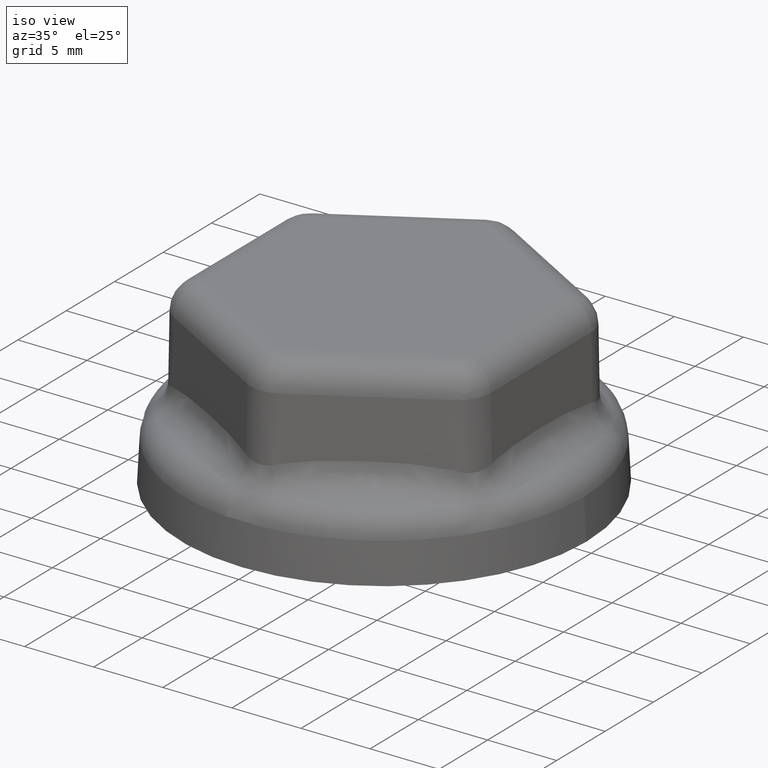
[diagram: clean part render]
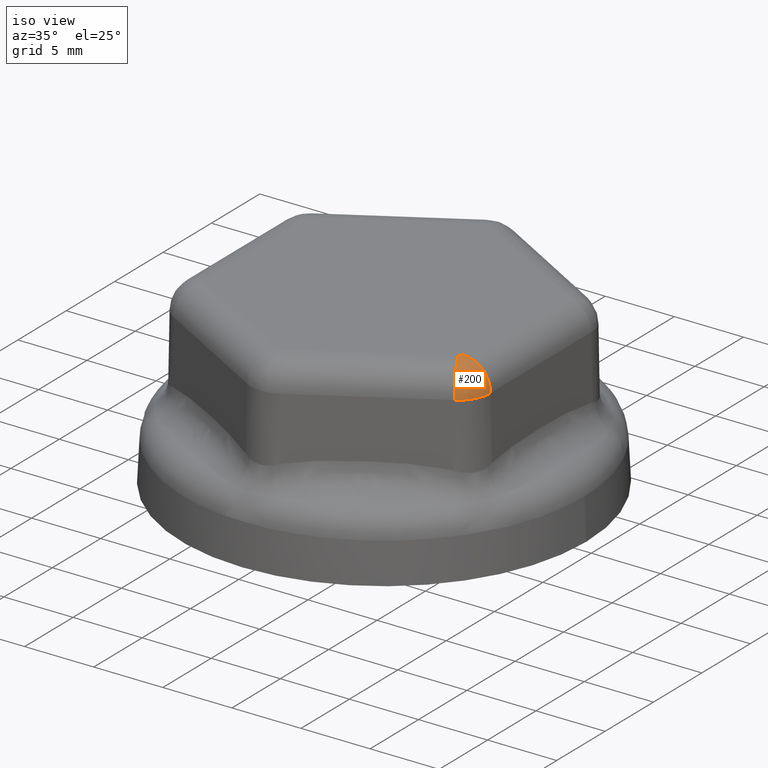
[diagram: same view with one face highlighted and labeled with its STEP entity id]
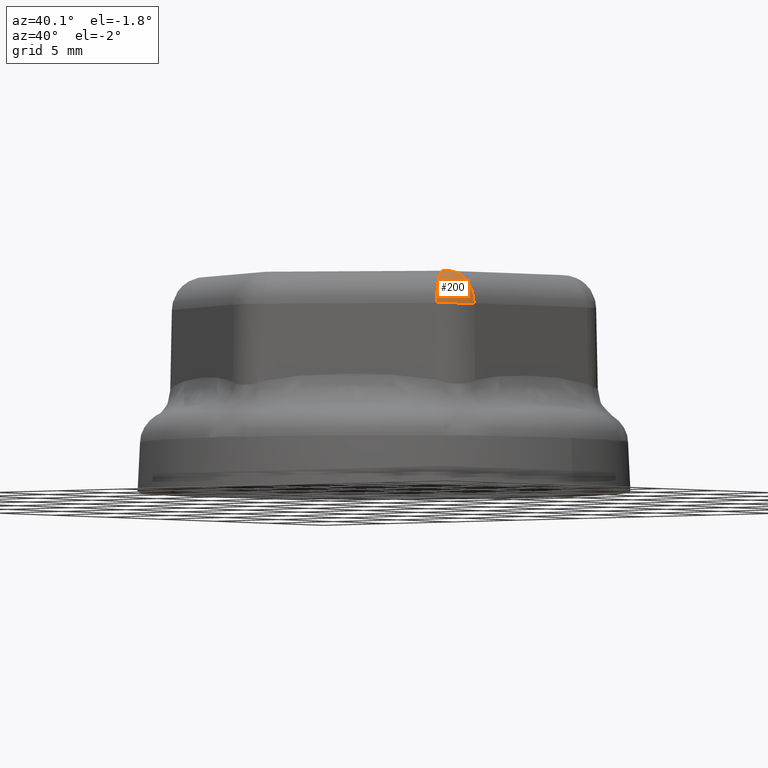
[diagram: same view with one face highlighted and labeled with its STEP entity id]
A machine part, iso view. The second image highlights one B-rep face of the part: STEP entity #200.
A second angle (auxiliary view) of the same face is appended — the face is thin or edge-on in the first view.
In plain terms, the highlighted face is a freeform B-spline surface patch.
Its self-contained STEP definition (entity closure, byte-faithful):
#200 = ADVANCED_FACE( '', ( #460 ), #461, .T. );
#460 = FACE_OUTER_BOUND( '', #5009, .T. );
#461 = ( B_SPLINE_SURFACE( 3, 2, ( ( #5011, #5012, #5013 ), ( #5014, #5015, #5016 ), ( #5017, #5018, #5019 ), ( #5020, #5021, #5022 ), ( #5023, #5024, #5025 ), ( #5026, #5027, #5028 ), ( #5029, #5030, #5031 ), ( #5032, #5033, #5034 ), ( #5035, #5036, #5037 ), ( #5038, #5039, #5040 ), ( #5041, #5042, #5043 ), ( #5044, #5045, #5046 ), ( #5047, #5048, #5049 ), ( #5050, #5051, #5052 ), ( #5053, #5054, #5055 ), ( #5056, #5057, #5058 ), ( #5059, #5060, #5061 ), ( #5062, #5063, #5064 ), ( #5065, #5066, #5067 ), ( #5068, #5069, #5070 ), ( #5071, #5072, #5073 ), ( #5074, #5075, #5076 ), ( #5077, #5078, #5079 ), ( #5080, #5081, #5082 ), ( #5083, #5084, #5085 ), ( #5086, #5087, #5088 ), ( #5089, #5090, #5091 ), ( #5092, #5093, #5094 ), ( #5095, #5096, #5097 ), ( #5098, #5099, #5100 ), ( #5101, #5102, #5103 ), ( #5104, #5105, #5106 ), ( #5107, #5108, #5109 ), ( #5110, #5111, #5112 ), ( #5113, #5114, #5115 ), ( #5116, #5117, #5118 ) ), .UNSPECIFIED., .F., .F., .F. )B_SPLINE_SURFACE_WITH_KNOTS( ( 4, 2, 2, 2, 2, 2, 2, 2, 2, 2, 2, 2, 2, 2, 2, 2, 2, 4 ), ( 3, 3 ), ( 0.000000000000000, 2.33139516953268E-005, 4.66279033906536E-005, 6.99418550859804E-005, 9.32558067813072E-005, 0.000116569758476634, 0.000139883710171961, 0.000163197661867288, 0.000186511613562614, 0.000209825565257941, 0.000233139516953268, 0.000256453468648595, 0.000279767420343922, 0.000303081372039248, 0.000326395323734575, 0.000338052299582239, 0.000349709275429902, 0.000373023227125229 ), ( 0.000000000000000, 1.00000000000000 ), .UNSPECIFIED. )RATIONAL_B_SPLINE_SURFACE( ( ( 1.00000000000000, 0.713250449154182, 1.00000000000000 ), ( 1.00000000000000, 0.713250448841956, 1.00000000000000 ), ( 1.00000000000000, 0.713250266793792, 1.00000000000000 ), ( 1.00000000000000, 0.713249695211527, 1.00000000000000 ), ( 1.00000000000000, 0.713249306370470, 1.00000000000000 ), ( 1.00000000000000, 0.713248445815099, 1.00000000000000 ), ( 1.00000000000000, 0.713247973672515, 1.00000000000000 ), ( 1.00000000000000, 0.713247030825169, 1.00000000000000 ), ( 1.00000000000000, 0.713246559636566, 1.00000000000000 ), ( 1.00000000000000, 0.713245674456492, 1.00000000000000 ), ( 1.00000000000000, 0.713245260077269, 1.00000000000000 ), ( 1.00000000000000, 0.713244525772709, 1.00000000000000 ), ( 1.00000000000000, 0.713244208936481, 1.00000000000000 ), ( 1.00000000000000, 0.713243695626517, 1.00000000000000 ), ( 1.00000000000000, 0.713243498844532, 1.00000000000000 ), ( 1.00000000000000, 0.713243234733009, 1.00000000000000 ), ( 1.00000000000000, 0.713243167333658, 1.00000000000000 ), ( 1.00000000000000, 0.713243165282810, 1.00000000000000 ), ( 1.00000000000000, 0.713243230631889, 1.00000000000000 ), ( 1.00000000000000, 0.713243492068580, 1.00000000000000 ), ( 1.00000000000000, 0.713243688307004, 1.00000000000000 ), ( 1.00000000000000, 0.713244202937849, 1.00000000000000 ), ( 1.00000000000000, 0.713244519272273, 1.00000000000000 ), ( 1.00000000000000, 0.713245246167227, 1.00000000000000 ), ( 1.00000000000000, 0.713245656996324, 1.00000000000000 ), ( 1.00000000000000, 0.713246537392250, 1.00000000000000 ), ( 1.00000000000000, 0.713247007340260, 1.00000000000000 ), ( 1.00000000000000, 0.713247951094424, 1.00000000000000 ), ( 1.00000000000000, 0.713248425435285, 1.00000000000000 ), ( 1.00000000000000, 0.713249076198857, 1.00000000000000 ), ( 1.00000000000000, 0.713249282790987, 1.00000000000000 ), ( 1.00000000000000, 0.713249660600609, 1.00000000000000 ), ( 1.00000000000000, 0.713249831999367, 1.00000000000000 ), ( 1.00000000000000, 0.713250266640732, 1.00000000000000 ), ( 1.00000000000000, 0.713250449014916, 1.00000000000000 ), ( 1.00000000000000, 0.713250449154182, 1.00000000000000 ) ) )BOUNDED_SURFACE(  )REPRESENTATION_ITEM( '' )GEOMETRIC_REPRESENTATION_ITEM(  )SURFACE(  ) );
#5009 = EDGE_LOOP( '', ( #5859, #5860, #5861, #5862 ) );
#5011 = CARTESIAN_POINT( '', ( 9.36005482448643, -5.19619637440034, 12.8000000000000 ) );
#5012 = CARTESIAN_POINT( '', ( 11.3254493507178, -5.19619638907192, 12.8000000000000 ) );
#5013 = CARTESIAN_POINT( '', ( 11.3597502147992, -5.19619638932797, 10.8349048128746 ) );
#5014 = CARTESIAN_POINT( '', ( 9.36005478637126, -5.20409815425190, 12.8000000000000 ) );
#5015 = CARTESIAN_POINT( '', ( 11.3254487692520, -5.25724049312538, 12.8000000000001 ) );
#5016 = CARTESIAN_POINT( '', ( 11.3597502141663, -5.25816794429314, 10.8349048226312 ) );
#5017 = CARTESIAN_POINT( '', ( 9.35973493251974, -5.21194113606678, 12.8000000000000 ) );
#5018 = CARTESIAN_POINT( '', ( 11.3229801130982, -5.31628214608561, 12.8000000000000 ) );
#5019 = CARTESIAN_POINT( '', ( 11.3572427068909, -5.31810315455421, 10.8349037769744 ) );
#5020 = CARTESIAN_POINT( '', ( 9.35851381291991, -5.22752004595823, 12.8000000000000 ) );
#5021 = CARTESIAN_POINT( '', ( 11.3140425216243, -5.43035173392033, 12.8000000000000 ) );
#5022 = CARTESIAN_POINT( '', ( 11.3481667284250, -5.43389121795219, 10.8349005062279 ) );
#5023 = CARTESIAN_POINT( '', ( 9.35761254814214, -5.23525600283670, 12.8000000000000 ) );
#5024 = CARTESIAN_POINT( '', ( 11.3075767698228, -5.48538370123528, 12.8000000000000 ) );
#5025 = CARTESIAN_POINT( '', ( 11.3416021774949, -5.48974830323260, 10.8348982957811 ) );
#5026 = CARTESIAN_POINT( '', ( 9.35527307436509, -5.25062910343187, 12.8000000000000 ) );
#5027 = CARTESIAN_POINT( '', ( 11.2913741772049, -5.59188757218135, 12.8000000000000 ) );
#5028 = CARTESIAN_POINT( '', ( 11.3251525205822, -5.59784142782764, 10.8348933781998 ) );
#5029 = CARTESIAN_POINT( '', ( 9.35383475482369, -5.25826622680535, 12.8000000000000 ) );
#5030 = CARTESIAN_POINT( '', ( 11.2816354439395, -5.64336679720294, 12.8000000000000 ) );
#5031 = CARTESIAN_POINT( '', ( 11.3152667225736, -5.65008509851981, 10.8348906903893 ) );
#5032 = CARTESIAN_POINT( '', ( 9.35045159518731, -5.27344725921942, 12.8000000000000 ) );
#5033 = CARTESIAN_POINT( '', ( 11.2593534461539, -5.74337656301098, 12.8000000000000 ) );
#5034 = CARTESIAN_POINT( '', ( 11.2926496025178, -5.75157340190323, 10.8348853053244 ) );
#5035 = CARTESIAN_POINT( '', ( 9.34850666156579, -5.28099115104826, 12.8000000000000 ) );
#5036 = CARTESIAN_POINT( '', ( 11.2468079481259, -5.79190891282554, 12.8000000000000 ) );
#5037 = CARTESIAN_POINT( '', ( 11.2799168877973, -5.80082006540006, 10.8348826210369 ) );
#5038 = CARTESIAN_POINT( '', ( 9.34412835687212, -5.29598904818335, 12.8000000000000 ) );
#5039 = CARTESIAN_POINT( '', ( 11.2191655964194, -5.88661610998128, 12.8000000000000 ) );
#5040 = CARTESIAN_POINT( '', ( 11.2518638578541, -5.89691595086275, 10.8348775668187 ) );
#5041 = CARTESIAN_POINT( '', ( 9.34169473271440, -5.30344359654992, 12.8000000000000 ) );
#5042 = CARTESIAN_POINT( '', ( 11.2040660779729, -5.93279387307727, 12.8000000000000 ) );
#5043 = CARTESIAN_POINT( '', ( 11.2365414141075, -5.94376829403303, 10.8348752052037 ) );
#5044 = CARTESIAN_POINT( '', ( 9.33634683962469, -5.31826188229514, 12.8000000000000 ) );
#5045 = CARTESIAN_POINT( '', ( 11.1714041263464, -6.02330813641380, 12.8000000000000 ) );
#5046 = CARTESIAN_POINT( '', ( 11.2033992063115, -6.03560099337888, 10.8348710130649 ) );
#5047 = CARTESIAN_POINT( '', ( 9.33345576948408, -5.32556104728985, 12.8000000000000 ) );
#5048 = CARTESIAN_POINT( '', ( 11.1539827568090, -6.06725097686045, 12.8000000000000 ) );
#5049 = CARTESIAN_POINT( '', ( 11.1857229701958, -6.08018209797645, 10.8348692074466 ) );
#5050 = CARTESIAN_POINT( '', ( 9.32726656109497, -5.33993320195482, 12.8000000000000 ) );
#5051 = CARTESIAN_POINT( '', ( 11.1170626922928, -6.15299165323393, 12.8000000000000 ) );
#5052 = CARTESIAN_POINT( '', ( 11.1482643861780, -6.16716581472182, 10.8348662762825 ) );
#5053 = CARTESIAN_POINT( '', ( 9.32396729995988, -5.34700903943513, 12.8000000000000 ) );
#5054 = CARTESIAN_POINT( '', ( 11.0975569515185, -6.19480503728648, 12.8000000000000 ) );
#5055 = CARTESIAN_POINT( '', ( 11.1284752094765, -6.20958433222920, 10.8348651550772 ) );
#5056 = CARTESIAN_POINT( '', ( 9.31697044305279, -5.36094614873613, 12.8000000000000 ) );
#5057 = CARTESIAN_POINT( '', ( 11.0563977544017, -6.27679382318050, 12.8000000000000 ) );
#5058 = CARTESIAN_POINT( '', ( 11.0867191126287, -6.29275871840792, 10.8348636470682 ) );
#5059 = CARTESIAN_POINT( '', ( 9.31327281216555, -5.36780740164165, 12.8000000000000 ) );
#5060 = CARTESIAN_POINT( '', ( 11.0347444256244, -6.31696753287917, 12.8000000000000 ) );
#5061 = CARTESIAN_POINT( '', ( 11.0647524809907, -6.33351294062179, 10.8348632629243 ) );
#5062 = CARTESIAN_POINT( '', ( 9.30548138937593, -5.38131651262910, 12.8000000000000 ) );
#5063 = CARTESIAN_POINT( '', ( 10.9891239106538, -6.39606640861188, 12.8000000000000 ) );
#5064 = CARTESIAN_POINT( '', ( 11.0184725401253, -6.41375515101022, 10.8348632513589 ) );
#5065 = CARTESIAN_POINT( '', ( 9.30138760812301, -5.38796437644742, 12.8000000000000 ) );
#5066 = CARTESIAN_POINT( '', ( 10.9651575927329, -6.43499028915861, 12.8000000000000 ) );
#5067 = CARTESIAN_POINT( '', ( 10.9941600954429, -6.45324181591287, 10.8348636235252 ) );
#5068 = CARTESIAN_POINT( '', ( 9.29279765336294, -5.40104335276119, 12.8000000000000 ) );
#5069 = CARTESIAN_POINT( '', ( 10.9146305020992, -6.51191958928115, 12.8000000000000 ) );
#5070 = CARTESIAN_POINT( '', ( 10.9429032358835, -6.53128501204812, 10.8348651165563 ) );
#5071 = CARTESIAN_POINT( '', ( 9.28830014254334, -5.40747636133681, 12.8000000000000 ) );
#5072 = CARTESIAN_POINT( '', ( 10.8880630584258, -6.54993523452750, 12.8000000000000 ) );
#5073 = CARTESIAN_POINT( '', ( 10.9159518986298, -6.56985180752240, 10.8348662349353 ) );
#5074 = CARTESIAN_POINT( '', ( 9.27889302682323, -5.42010988308932, 12.8000000000000 ) );
#5075 = CARTESIAN_POINT( '', ( 10.8319500601176, -6.62528865298856, 12.8000000000000 ) );
#5076 = CARTESIAN_POINT( '', ( 10.8590270160824, -6.64630044705820, 10.8348691728011 ) );
#5077 = CARTESIAN_POINT( '', ( 9.27402231153977, -5.42625826712764, 12.8000000000000 ) );
#5078 = CARTESIAN_POINT( '', ( 10.8026364018172, -6.66231605730409, 12.8000000000000 ) );
#5079 = CARTESIAN_POINT( '', ( 10.8292885122130, -6.68386725513837, 10.8348709759523 ) );
#5080 = CARTESIAN_POINT( '', ( 9.26394787237300, -5.43821233033267, 12.8000000000000 ) );
#5081 = CARTESIAN_POINT( '', ( 10.7411129296920, -6.73531170178136, 12.8000000000000 ) );
#5082 = CARTESIAN_POINT( '', ( 10.7668711639058, -6.75792996326923, 10.8348751258550 ) );
#5083 = CARTESIAN_POINT( '', ( 9.25874366201073, -5.44401872672849, 12.8000000000000 ) );
#5084 = CARTESIAN_POINT( '', ( 10.7089016225714, -6.77128402258426, 12.8000000000000 ) );
#5085 = CARTESIAN_POINT( '', ( 10.7341904989966, -6.79442973659535, 10.8348774669897 ) );
#5086 = CARTESIAN_POINT( '', ( 9.24799202166966, -5.45528080943548, 12.8000000000000 ) );
#5087 = CARTESIAN_POINT( '', ( 10.6410440082380, -6.84235587144154, 12.8000000000000 ) );
#5088 = CARTESIAN_POINT( '', ( 10.6653406857849, -6.86654822701239, 10.8348824943134 ) );
#5089 = CARTESIAN_POINT( '', ( 9.24244465408072, -5.46073655949808, 12.8000000000000 ) );
#5090 = CARTESIAN_POINT( '', ( 10.6053992160096, -6.87745655532062, 12.8000000000000 ) );
#5091 = CARTESIAN_POINT( '', ( 10.6291726023978, -6.90216765775303, 10.8348851710808 ) );
#5092 = CARTESIAN_POINT( '', ( 9.23098930781783, -5.47127957851662, 12.8000000000000 ) );
#5093 = CARTESIAN_POINT( '', ( 10.5299879424781, -6.94685446344087, 12.8000000000000 ) );
#5094 = CARTESIAN_POINT( '', ( 10.5526494898854, -6.97259635976014, 10.8348905617983 ) );
#5095 = CARTESIAN_POINT( '', ( 9.22508142751635, -5.47636694799183, 12.8000000000000 ) );
#5096 = CARTESIAN_POINT( '', ( 10.4902215255766, -6.98115478530161, 12.8000000000000 ) );
#5097 = CARTESIAN_POINT( '', ( 10.5122938638736, -7.00740805415690, 10.8348932616046 ) );
#5098 = CARTESIAN_POINT( '', ( 9.21592886411837, -5.48370091404823, 12.8000000000000 ) );
#5099 = CARTESIAN_POINT( '', ( 10.4268553397801, -7.03192531048747, 12.8000000000000 ) );
#5100 = CARTESIAN_POINT( '', ( 10.4479842593017, -7.05893956654163, 10.8348969807631 ) );
#5101 = CARTESIAN_POINT( '', ( 9.21282949356537, -5.48609599449219, 12.8000000000000 ) );
#5102 = CARTESIAN_POINT( '', ( 10.4051133548473, -7.04873403127945, 12.8000000000000 ) );
#5103 = CARTESIAN_POINT( '', ( 10.4259175429889, -7.07600051392435, 10.8348981553475 ) );
#5104 = CARTESIAN_POINT( '', ( 9.20652920725825, -5.49078239404367, 12.8000000000000 ) );
#5105 = CARTESIAN_POINT( '', ( 10.3602776805432, -7.08208174776497, 12.8000000000000 ) );
#5106 = CARTESIAN_POINT( '', ( 10.3804108598658, -7.10985026698768, 10.8349003156472 ) );
#5107 = CARTESIAN_POINT( '', ( 9.20332685669577, -5.49307475394283, 12.8000000000000 ) );
#5108 = CARTESIAN_POINT( '', ( 10.3371736149975, -7.09862869025784, 12.8000000000000 ) );
#5109 = CARTESIAN_POINT( '', ( 10.3569599167154, -7.12664654305077, 10.8349012893917 ) );
#5110 = CARTESIAN_POINT( '', ( 9.19356888977857, -5.49978187418109, 12.8000000000000 ) );
#5111 = CARTESIAN_POINT( '', ( 10.2657431682591, -7.14772304619984, 12.8000000000000 ) );
#5112 = CARTESIAN_POINT( '', ( 10.2844547948948, -7.17648289236134, 10.8349037754454 ) );
#5113 = CARTESIAN_POINT( '', ( 9.18690258252144, -5.50399963725451, 12.8000000000000 ) );
#5114 = CARTESIAN_POINT( '', ( 10.2155818848413, -7.17953295711436, 12.7999999999999 ) );
#5115 = CARTESIAN_POINT( '', ( 10.2335350503344, -7.20877547200080, 10.8349048208758 ) );
#5116 = CARTESIAN_POINT( '', ( 9.18006547594090, -5.50794707138094, 12.8000000000000 ) );
#5117 = CARTESIAN_POINT( '', ( 10.1627627544919, -7.21002865064461, 12.8000000000000 ) );
#5118 = CARTESIAN_POINT( '', ( 10.1799131868020, -7.23973407015534, 10.8349048128746 ) );
#5859 = ORIENTED_EDGE( '', *, *, #6199, .T. );
#5860 = ORIENTED_EDGE( '', *, *, #6023, .F. );
#5861 = ORIENTED_EDGE( '', *, *, #6198, .F. );
#5862 = ORIENTED_EDGE( '', *, *, #6083, .F. );
#6023 = EDGE_CURVE( '', #6416, #6418, #6419, .T. );
#6083 = EDGE_CURVE( '', #6483, #6520, #6521, .T. );
#6198 = EDGE_CURVE( '', #6520, #6416, #6688, .T. );
#6199 = EDGE_CURVE( '', #6483, #6418, #6689, .T. );
#6416 = VERTEX_POINT( '', #7479 );
#6418 = VERTEX_POINT( '', #7482 );
#6419 = B_SPLINE_CURVE_WITH_KNOTS( '', 3, ( #7483, #7484, #7485, #7486, #7487, #7488, #7489, #7490, #7491, #7492, #7493, #7494, #7495, #7496, #7497, #7498, #7499, #7500, #7501, #7502, #7503, #7504 ), .UNSPECIFIED., .F., .F., ( 4, 2, 2, 2, 2, 2, 2, 2, 2, 2, 4 ), ( 0.000000000000000, 2.36650013815580E-005, 4.73300027631161E-005, 9.46600055262280E-005, 0.000141990008289340, 0.000189320011052452, 0.000236650013815564, 0.000260315015197119, 0.000283980016578674, 0.000331310019341782, 0.000378640022104891 ), .UNSPECIFIED. );
#6483 = VERTEX_POINT( '', #7793 );
#6520 = VERTEX_POINT( '', #8055 );
#6521 = B_SPLINE_CURVE_WITH_KNOTS( '', 3, ( #8056, #8057, #8058, #8059, #8060, #8061, #8062, #8063, #8064, #8065, #8066, #8067, #8068, #8069, #8070, #8071, #8072, #8073, #8074, #8075, #8076, #8077, #8078, #8079, #8080, #8081, #8082, #8083, #8084, #8085, #8086, #8087, #8088, #8089, #8090, #8091, #8092, #8093, #8094, #8095, #8096 ), .UNSPECIFIED., .F., .F., ( 4, 2, 1, 1, 1, 1, 1, 1, 1, 1, 1, 2, 2, 2, 1, 1, 1, 2, 1, 2, 2, 1, 1, 1, 2, 1, 2, 2, 4 ), ( -5.99999999839724E-008, 2.33505648531633E-006, 4.73011297061664E-006, 9.52022594121725E-006, 1.91004518824210E-005, 3.82609037648286E-005, 7.65818075296437E-005, 0.000153223615059271, 0.000306507230118524, 0.000459790845177776, 0.000613074460237029, 0.000766358075296281, 0.000804678979061094, 0.000842999882825907, 0.000919641690355530, 0.00107292530541478, 0.00122620892047402, 0.00137949253553326, 0.00145613434306289, 0.00149445524682770, 0.00153277615059251, 0.00168605976565177, 0.00183934338071102, 0.00199262699577028, 0.00214591061082954, 0.00222255241835917, 0.00226087332212398, 0.00229919422588879, 0.00245247784094805 ), .UNSPECIFIED. );
#6688 = CIRCLE( '', #8853, 2.00000000000000 );
#6689 = CIRCLE( '', #8854, 2.00000000000000 );
#7479 = CARTESIAN_POINT( '', ( 9.18006547466193, -5.50794707211936, 12.8000000000000 ) );
#7482 = CARTESIAN_POINT( '', ( 9.36005482448643, -5.19619638932787, 12.8000000000000 ) );
#7483 = CARTESIAN_POINT( '', ( 9.18006547466193, -5.50794707211936, 12.8000000000000 ) );
#7484 = CARTESIAN_POINT( '', ( 9.18690267691540, -5.50399961147514, 12.8000000000000 ) );
#7485 = CARTESIAN_POINT( '', ( 9.19356879688254, -5.49978195079973, 12.8000000000000 ) );
#7486 = CARTESIAN_POINT( '', ( 9.20657960364351, -5.49083897166916, 12.8000000000000 ) );
#7487 = CARTESIAN_POINT( '', ( 9.21287801826546, -5.48614558046079, 12.8000000000000 ) );
#7488 = CARTESIAN_POINT( '', ( 9.23118311476189, -5.47147761874074, 12.8000000000000 ) );
#7489 = CARTESIAN_POINT( '', ( 9.24261620724572, -5.46091186117628, 12.8000000000000 ) );
#7490 = CARTESIAN_POINT( '', ( 9.26411947119843, -5.43838768047253, 12.8000000000000 ) );
#7491 = CARTESIAN_POINT( '', ( 9.27418844070555, -5.42642802913969, 12.8000000000000 ) );
#7492 = CARTESIAN_POINT( '', ( 9.29300472178955, -5.40115822451464, 12.8000000000000 ) );
#7493 = CARTESIAN_POINT( '', ( 9.30158567544345, -5.38807107465819, 12.8000000000000 ) );
#7494 = CARTESIAN_POINT( '', ( 9.31716851851131, -5.36105285276678, 12.8000000000000 ) );
#7495 = CARTESIAN_POINT( '', ( 9.32417194359549, -5.34711928217722, 12.8000000000000 ) );
#7496 = CARTESIAN_POINT( '', ( 9.33345577048694, -5.32556105896399, 12.8000000000000 ) );
#7497 = CARTESIAN_POINT( '', ( 9.33634663435595, -5.31826244441351, 12.8000000000000 ) );
#7498 = CARTESIAN_POINT( '', ( 9.34169493082304, -5.30344305427114, 12.8000000000000 ) );
#7499 = CARTESIAN_POINT( '', ( 9.34412834973313, -5.29598905808304, 12.8000000000000 ) );
#7500 = CARTESIAN_POINT( '', ( 9.35069581861411, -5.27349221548556, 12.8000000000000 ) );
#7501 = CARTESIAN_POINT( '', ( 9.35410331217950, -5.25831566180778, 12.8000000000000 ) );
#7502 = CARTESIAN_POINT( '', ( 9.35878230638921, -5.22756947034123, 12.8000000000000 ) );
#7503 = CARTESIAN_POINT( '', ( 9.36005482356141, -5.21200001962284, 12.8000000000000 ) );
#7504 = CARTESIAN_POINT( '', ( 9.36005482448644, -5.19619638932787, 12.8000000000000 ) );
#7793 = CARTESIAN_POINT( '', ( 11.3597502147992, -5.19619638932787, 10.8349048128746 ) );
#8055 = CARTESIAN_POINT( '', ( 10.1799131827385, -7.23973407250138, 10.8349048128746 ) );
#8056 = CARTESIAN_POINT( '', ( 11.3597502147992, -5.19619638932777, 10.8349048128746 ) );
#8057 = CARTESIAN_POINT( '', ( 11.3597502147902, -5.19699474148961, 10.8349048130526 ) );
#8058 = CARTESIAN_POINT( '', ( 11.3597497852988, -5.19781682606588, 10.8349048126960 ) );
#8059 = CARTESIAN_POINT( '', ( 11.3597480659241, -5.19943796431329, 10.8349048119822 ) );
#8060 = CARTESIAN_POINT( '', ( 11.3597441972683, -5.20186944380164, 10.8349048103773 ) );
#8061 = CARTESIAN_POINT( '', ( 11.3597261491232, -5.20754130179992, 10.8349048029063 ) );
#8062 = CARTESIAN_POINT( '', ( 11.3596540142919, -5.21887864946369, 10.8349047731788 ) );
#8063 = CARTESIAN_POINT( '', ( 11.3593659568116, -5.24152793619682, 10.8349046555380 ) );
#8064 = CARTESIAN_POINT( '', ( 11.3582175215554, -5.28672537554435, 10.8349041952679 ) );
#8065 = CARTESIAN_POINT( '', ( 11.3536524581458, -5.37671944425552, 10.8349024381590 ) );
#8066 = CARTESIAN_POINT( '', ( 11.3407610318575, -5.50415677997355, 10.8348979151613 ) );
#8067 = CARTESIAN_POINT( '', ( 11.3153302468496, -5.65532137207696, 10.8348905208608 ) );
#8068 = CARTESIAN_POINT( '', ( 11.2800371873149, -5.80474321212574, 10.8348823855727 ) );
#8069 = CARTESIAN_POINT( '', ( 11.2499128820246, -5.90319227090760, 10.8348772221180 ) );
#8070 = CARTESIAN_POINT( '', ( 11.2289887012596, -5.96435246415062, 10.8348742822579 ) );
#8071 = CARTESIAN_POINT( '', ( 11.2246989219541, -5.97656595840710, 10.8348737085202 ) );
#8072 = CARTESIAN_POINT( '', ( 11.2159081039250, -6.00095561549471, 10.8348725941137 ) );
#8073 = CARTESIAN_POINT( '', ( 11.2114147051968, -6.01311031959456, 10.8348720544444 ) );
#8074 = CARTESIAN_POINT( '', ( 11.1976595254650, -6.04940897491158, 10.8348704958006 ) );
#8075 = CARTESIAN_POINT( '', ( 11.1690276932372, -6.12140303023206, 10.8348676164276 ) );
#8076 = CARTESIAN_POINT( '', ( 11.1157848081531, -6.23842213770687, 10.8348642162576 ) );
#8077 = CARTESIAN_POINT( '', ( 11.0431995461811, -6.37416855457010, 10.8348627898617 ) );
#8078 = CARTESIAN_POINT( '', ( 10.9890231122503, -6.46155365897049, 10.8348637081428 ) );
#8079 = CARTESIAN_POINT( '', ( 10.9461925506724, -6.52591002643364, 10.8348650692298 ) );
#8080 = CARTESIAN_POINT( '', ( 10.9242272069776, -6.55779232391557, 10.8348659168296 ) );
#8081 = CARTESIAN_POINT( '', ( 10.9014267140687, -6.58922538338082, 10.8348670000585 ) );
#8082 = CARTESIAN_POINT( '', ( 10.8860393360301, -6.61008013994708, 10.8348677722289 ) );
#8083 = CARTESIAN_POINT( '', ( 10.8782565536503, -6.62045091407036, 10.8348681831645 ) );
#8084 = CARTESIAN_POINT( '', ( 10.8390029423871, -6.67188363869262, 10.8348703487696 ) );
#8085 = CARTESIAN_POINT( '', ( 10.7738388470355, -6.75173865570218, 10.8348745385799 ) );
#8086 = CARTESIAN_POINT( '', ( 10.6691406404202, -6.86433616038700, 10.8348822310345 ) );
#8087 = CARTESIAN_POINT( '', ( 10.5575135657198, -6.96977261706639, 10.8348903696835 ) );
#8088 = CARTESIAN_POINT( '', ( 10.4784284733763, -7.03524015743979, 10.8348953390367 ) );
#8089 = CARTESIAN_POINT( '', ( 10.4173224285747, -7.08248853140470, 10.8348985807072 ) );
#8090 = CARTESIAN_POINT( '', ( 10.3863209673884, -7.10564925284503, 10.8349000797745 ) );
#8091 = CARTESIAN_POINT( '', ( 10.3546353501972, -7.12810289286812, 10.8349013345654 ) );
#8092 = CARTESIAN_POINT( '', ( 10.3333580305008, -7.14291326516709, 10.8349021098733 ) );
#8093 = CARTESIAN_POINT( '', ( 10.3226475909981, -7.15023546666350, 10.8349024666950 ) );
#8094 = CARTESIAN_POINT( '', ( 10.2688302236423, -7.18636589317685, 10.8349040776082 ) );
#8095 = CARTESIAN_POINT( '', ( 10.2248424820438, -7.21379412900596, 10.8349048128784 ) );
#8096 = CARTESIAN_POINT( '', ( 10.1799131827385, -7.23973407250138, 10.8349048128746 ) );
#8853 = AXIS2_PLACEMENT_3D( '', #9305, #9306, #9307 );
#8854 = AXIS2_PLACEMENT_3D( '', #9308, #9309, #9310 );
#9305 = CARTESIAN_POINT( '', ( 9.18006547466193, -5.50794707211936, 10.8000000000000 ) );
#9306 = DIRECTION( '', ( -0.866025400054126, -0.500000006461090, -2.16840437299152E-016 ) );
#9307 = DIRECTION( '', ( 0.500000006461090, -0.866025400054126, 0.000000000000000 ) );
#9308 = CARTESIAN_POINT( '', ( 9.36005482448644, -5.19619638932787, 10.8000000000000 ) );
#9309 = DIRECTION( '', ( -4.33746930752656E-016, -1.00000000000000, 0.000000000000000 ) );
#9310 = DIRECTION( '', ( 1.00000000000000, -4.33746930752656E-016, 0.000000000000000 ) );